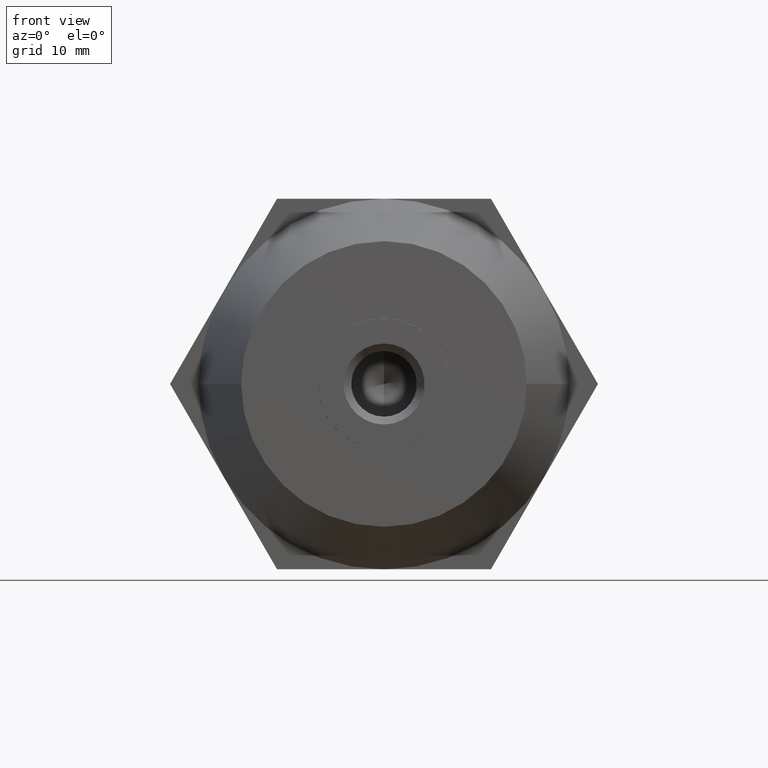
[diagram: clean part render]
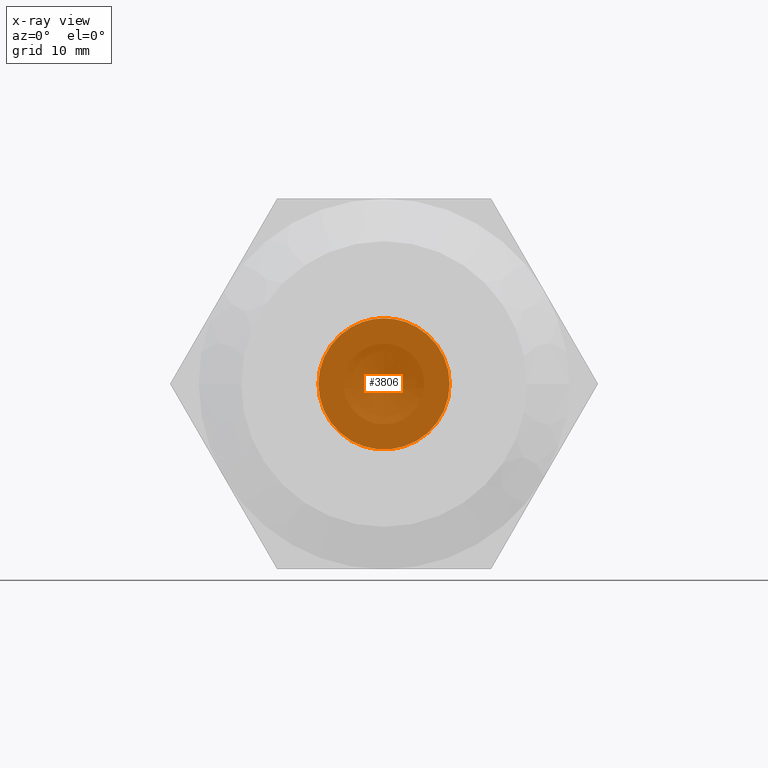
[diagram: x-ray — body ghosted, one internal face saturated and labeled with its STEP entity id]
A machine part, front view, then the same camera in x-ray: the body is ghosted and one INTERNAL B-rep face — a face not visible from any outside direction — is saturated and labeled: STEP entity #3806.
In plain terms, the highlighted planar face has unit normal (0, 1, 0).
Its self-contained STEP definition (entity closure, byte-faithful):
#104 = EDGE_CURVE ( 'NONE', #2720, #3869, #2538, .T. ) ;
#255 = PLANE ( 'NONE',  #3459 ) ;
#292 = DIRECTION ( 'NONE',  ( 0.0000000000000000000, 0.0000000000000000000, 1.000000000000000000 ) ) ;
#344 = CARTESIAN_POINT ( 'NONE',  ( 0.0000000000000000000, 13.01000000000000200, 0.0000000000000000000 ) ) ;
#349 = DIRECTION ( 'NONE',  ( -0.0000000000000000000, -1.000000000000000000, -0.0000000000000000000 ) ) ;
#350 = CARTESIAN_POINT ( 'NONE',  ( 0.0000000000000000000, 13.01000000000000200, 8.500000000000000000 ) ) ;
#359 = CIRCLE ( 'NONE', #2842, 8.500000000000000000 ) ;
#392 = CARTESIAN_POINT ( 'NONE',  ( 4.249999999999940500, 13.00999999999896100, 7.361215932167770100 ) ) ;
#402 = EDGE_CURVE ( 'NONE', #466, #2639, #1861, .T. ) ;
#466 = VERTEX_POINT ( 'NONE', #1780 ) ;
#507 = ORIENTED_EDGE ( 'NONE', *, *, #2863, .F. ) ;
#516 = CIRCLE ( 'NONE', #3263, 8.500000000000000000 ) ;
#528 = DIRECTION ( 'NONE',  ( -0.0000000000000000000, -1.000000000000000000, -0.0000000000000000000 ) ) ;
#547 = AXIS2_PLACEMENT_3D ( 'NONE', #2665, #528, #840 ) ;
#550 = DIRECTION ( 'NONE',  ( -1.776356839400250500E-015, 0.0000000000000000000, 1.000000000000000000 ) ) ;
#584 = CARTESIAN_POINT ( 'NONE',  ( 0.0000000000000000000, 13.01000000000000200, 0.0000000000000000000 ) ) ;
#681 = AXIS2_PLACEMENT_3D ( 'NONE', #344, #2484, #3763 ) ;
#724 = VERTEX_POINT ( 'NONE', #2071 ) ;
#760 = AXIS2_PLACEMENT_3D ( 'NONE', #1783, #1472, #550 ) ;
#840 = DIRECTION ( 'NONE',  ( 1.776356839400250500E-015, 0.0000000000000000000, 1.000000000000000000 ) ) ;
#893 = CIRCLE ( 'NONE', #760, 8.500000000000000000 ) ;
#988 = CIRCLE ( 'NONE', #681, 8.500000000000000000 ) ;
#1033 = EDGE_CURVE ( 'NONE', #2639, #2351, #1418, .T. ) ;
#1060 = DIRECTION ( 'NONE',  ( -0.0000000000000000000, -1.000000000000000000, -0.0000000000000000000 ) ) ;
#1207 = AXIS2_PLACEMENT_3D ( 'NONE', #1682, #1060, #3833 ) ;
#1294 = DIRECTION ( 'NONE',  ( -0.0000000000000000000, -1.000000000000000000, -0.0000000000000000000 ) ) ;
#1418 = CIRCLE ( 'NONE', #1207, 8.500000000000000000 ) ;
#1472 = DIRECTION ( 'NONE',  ( -0.0000000000000000000, -1.000000000000000000, -0.0000000000000000000 ) ) ;
#1558 = CARTESIAN_POINT ( 'NONE',  ( 0.0000000000000000000, 13.01000000000000200, 0.0000000000000000000 ) ) ;
#1611 = ORIENTED_EDGE ( 'NONE', *, *, #1033, .F. ) ;
#1616 = EDGE_LOOP ( 'NONE', ( #1611, #1668, #507, #1650, #3109, #3360, #2391 ) ) ;
#1650 = ORIENTED_EDGE ( 'NONE', *, *, #2642, .F. ) ;
#1668 = ORIENTED_EDGE ( 'NONE', *, *, #402, .F. ) ;
#1682 = CARTESIAN_POINT ( 'NONE',  ( 0.0000000000000000000, 13.01000000000000200, 0.0000000000000000000 ) ) ;
#1705 = AXIS2_PLACEMENT_3D ( 'NONE', #2808, #2836, #3438 ) ;
#1780 = CARTESIAN_POINT ( 'NONE',  ( 8.500000000000000000, 13.01000000000000200, -3.469446951953615000E-015 ) ) ;
#1783 = CARTESIAN_POINT ( 'NONE',  ( 0.0000000000000000000, 13.01000000000000200, 0.0000000000000000000 ) ) ;
#1861 = CIRCLE ( 'NONE', #547, 8.500000000000000000 ) ;
#1930 = EDGE_CURVE ( 'NONE', #2351, #2720, #516, .T. ) ;
#2071 = CARTESIAN_POINT ( 'NONE',  ( 4.250000000000060400, 13.00999999999896100, -7.361215932167689300 ) ) ;
#2351 = VERTEX_POINT ( 'NONE', #350 ) ;
#2372 = CARTESIAN_POINT ( 'NONE',  ( -8.500000000000000000, 13.01000000000000200, 0.0000000000000000000 ) ) ;
#2391 = ORIENTED_EDGE ( 'NONE', *, *, #1930, .F. ) ;
#2484 = DIRECTION ( 'NONE',  ( -0.0000000000000000000, -1.000000000000000000, -0.0000000000000000000 ) ) ;
#2538 = CIRCLE ( 'NONE', #1705, 8.500000000000000000 ) ;
#2588 = EDGE_CURVE ( 'NONE', #3869, #3600, #359, .T. ) ;
#2639 = VERTEX_POINT ( 'NONE', #392 ) ;
#2642 = EDGE_CURVE ( 'NONE', #3600, #724, #988, .T. ) ;
#2665 = CARTESIAN_POINT ( 'NONE',  ( 0.0000000000000000000, 13.01000000000000200, 0.0000000000000000000 ) ) ;
#2720 = VERTEX_POINT ( 'NONE', #3811 ) ;
#2808 = CARTESIAN_POINT ( 'NONE',  ( 0.0000000000000000000, 13.01000000000000200, 0.0000000000000000000 ) ) ;
#2836 = DIRECTION ( 'NONE',  ( -0.0000000000000000000, -1.000000000000000000, -0.0000000000000000000 ) ) ;
#2842 = AXIS2_PLACEMENT_3D ( 'NONE', #1558, #1294, #3074 ) ;
#2863 = EDGE_CURVE ( 'NONE', #724, #466, #893, .T. ) ;
#3028 = FACE_OUTER_BOUND ( 'NONE', #1616, .T. ) ;
#3074 = DIRECTION ( 'NONE',  ( 0.0000000000000000000, 0.0000000000000000000, 1.000000000000000000 ) ) ;
#3100 = CARTESIAN_POINT ( 'NONE',  ( 0.0000000000000000000, 13.01000000000000200, 0.0000000000000000000 ) ) ;
#3109 = ORIENTED_EDGE ( 'NONE', *, *, #2588, .F. ) ;
#3263 = AXIS2_PLACEMENT_3D ( 'NONE', #3100, #349, #3738 ) ;
#3360 = ORIENTED_EDGE ( 'NONE', *, *, #104, .F. ) ;
#3438 = DIRECTION ( 'NONE',  ( 0.0000000000000000000, 0.0000000000000000000, 1.000000000000000000 ) ) ;
#3459 = AXIS2_PLACEMENT_3D ( 'NONE', #584, #3908, #292 ) ;
#3483 = CARTESIAN_POINT ( 'NONE',  ( -4.249999999999935200, 13.00999999999896100, -7.361215932167759500 ) ) ;
#3600 = VERTEX_POINT ( 'NONE', #3483 ) ;
#3738 = DIRECTION ( 'NONE',  ( 0.0000000000000000000, 0.0000000000000000000, 1.000000000000000000 ) ) ;
#3763 = DIRECTION ( 'NONE',  ( 1.776356839400250500E-015, 0.0000000000000000000, 1.000000000000000000 ) ) ;
#3806 = ADVANCED_FACE ( 'NONE', ( #3028 ), #255, .T. ) ;
#3811 = CARTESIAN_POINT ( 'NONE',  ( -4.250000000000000000, 13.01000000000000200, 7.361215932167730200 ) ) ;
#3833 = DIRECTION ( 'NONE',  ( 1.776356839400250500E-015, 0.0000000000000000000, 1.000000000000000000 ) ) ;
#3869 = VERTEX_POINT ( 'NONE', #2372 ) ;
#3908 = DIRECTION ( 'NONE',  ( 0.0000000000000000000, 1.000000000000000000, 0.0000000000000000000 ) ) ;